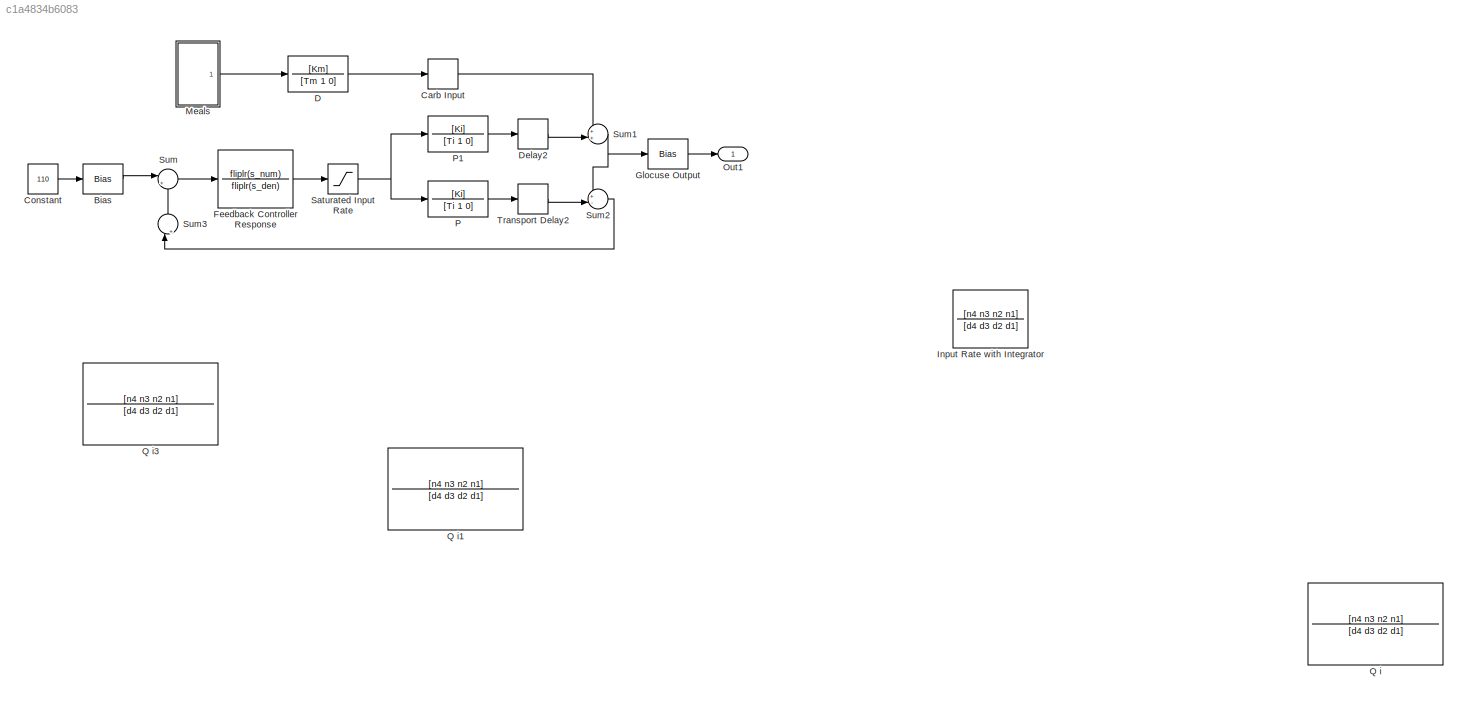
MODEL slx_c1a4834b6083
KIND model
CONFIG AbsTol = auto
CONFIG EnableMultiTasking = off
CONFIG FixedStep = auto
CONFIG MaxStep = auto
CONFIG MinStep = auto
CONFIG RelTol = 1e-3
CONFIG SampleTimeConstraint = Unconstrained
CONFIG Solver = VariableStepAuto
CONFIG SolverName = VariableStepAuto
CONFIG StartTime = 0.0
CONFIG StopTime = 48*60
BLOCK [Bias] Bias
  Bias = -110
  SaturateOnIntegerOverflow = off
BLOCK [TransportDelay] Carb Input
  DelayTime = Tdm
  Ports = [1, 1]
BLOCK [Constant] Constant
  Value = 110
BLOCK [TransferFcn] D
  Denominator = [Tm 1 0]
  Numerator = [Km]
BLOCK [TransportDelay] Delay2
  DelayTime = Tdi
  Ports = [1, 1]
BLOCK [TransferFcn] Feedback Controller Response
  Denominator = fliplr(s_den)
  Numerator = fliplr(s_num)
BLOCK [Bias] Glocuse Output
  Bias = +110
  SaturateOnIntegerOverflow = off
BLOCK [TransferFcn] Input Rate with Integrator
  Denominator = [d4 d3 d2 d1]
  Numerator = [n4 n3 n2 n1]
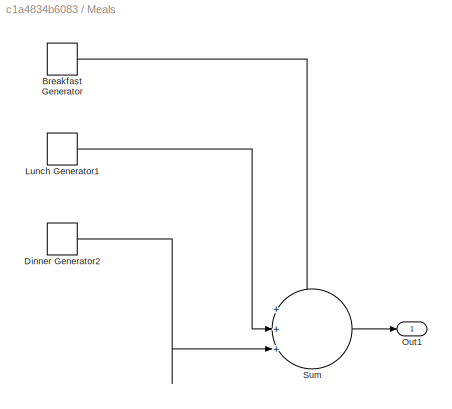
BLOCK [SubSystem] Meals
  Ports = [0, 1]
  RequestExecContextInheritance = off
  Variant = off
BLOCK [DiscretePulseGenerator] Meals/Breakfast Generator
  Amplitude = 25/10
  Period = 1440
  PhaseDelay = 60
  Ports = [0, 1]
  PulseWidth = 10
BLOCK [DiscretePulseGenerator] Meals/Dinner Generator2
  Amplitude = 3
  Period = 1440
  PhaseDelay = 540
  Ports = [0, 1]
  PulseWidth = 20
BLOCK [DiscretePulseGenerator] Meals/Lunch Generator1
  Amplitude = 40/15
  Period = 1440
  PhaseDelay = 420
  Ports = [0, 1]
  PulseWidth = 15
BLOCK [Outport] Meals/Out1
  IconDisplay = Port number
BLOCK [Sum] Meals/Sum
  IconShape = round
  InputSameDT = off
  Inputs = +++
  OutDataTypeStr = Inherit: Inherit via internal rule
  Ports = [3, 1]
  SaturateOnIntegerOverflow = off
BLOCK [Outport] Out1
  IconDisplay = Port number
BLOCK [TransferFcn] P
  Denominator = [Ti 1 0]
  Numerator = [Ki]
BLOCK [TransferFcn] P1
  Denominator = [Ti 1 0]
  Numerator = [Ki]
BLOCK [TransferFcn] Q i
  Denominator = [d4 d3 d2 d1]
  Numerator = [n4 n3 n2 n1]
BLOCK [TransferFcn] Q i1
  Denominator = [d4 d3 d2 d1]
  Numerator = [n4 n3 n2 n1]
BLOCK [TransferFcn] Q i3
  Denominator = [d4 d3 d2 d1]
  Numerator = [n4 n3 n2 n1]
BLOCK [Saturate] Saturated Input Rate
  InputPortMap = u0
  LowerLimit = 0
  Ports = [1, 1]
  UpperLimit = 166
BLOCK [Sum] Sum
  IconShape = round
  InputSameDT = off
  Inputs = |+-
  OutDataTypeStr = Inherit: Inherit via internal rule
  Ports = [2, 1]
  SaturateOnIntegerOverflow = off
BLOCK [Sum] Sum1
  IconShape = round
  InputSameDT = off
  Inputs = ++|
  OutDataTypeStr = Inherit: Inherit via internal rule
  Ports = [2, 1]
  SaturateOnIntegerOverflow = off
BLOCK [Sum] Sum2
  IconShape = round
  InputSameDT = off
  Inputs = +-|
  OutDataTypeStr = Inherit: Inherit via internal rule
  Ports = [2, 1]
  SaturateOnIntegerOverflow = off
BLOCK [Sum] Sum3
  IconShape = round
  InputSameDT = off
  Inputs = |++
  OutDataTypeStr = Inherit: Inherit via internal rule
  Ports = [2, 1]
  SaturateOnIntegerOverflow = off
BLOCK [TransportDelay] Transport Delay2
  DelayTime = Tdi
  Ports = [1, 1]
LINE Bias:1 -> Sum:1
LINE Carb Input:1 -> Sum1:1
LINE Constant:1 -> Bias:1
LINE D:1 -> Carb Input:1
LINE Delay2:1 -> Sum1:2
LINE Feedback Controller Response:1 -> Saturated Input Rate:1
LINE Glocuse Output:1 -> Out1:1
LINE Meals/Breakfast Generator:1 -> Meals/Sum:1
LINE Meals/Dinner Generator2:1 -> Meals/Sum:3
LINE Meals/Lunch Generator1:1 -> Meals/Sum:2
LINE Meals/Sum:1 -> Meals/Out1:1
LINE Meals:1 -> D:1
LINE P1:1 -> Delay2:1
LINE P:1 -> Transport Delay2:1
NET Saturated Input Rate:1 -> P1:1, P:1
NET Sum1:1 -> Glocuse Output:1, Sum2:1
LINE Sum2:1 -> Sum3:1
LINE Sum3:1 -> Sum:2
LINE Sum:1 -> Feedback Controller Response:1
LINE Transport Delay2:1 -> Sum2:2
note: NET lines group one-source signal fan-out (src -> all destinations, sorted); 1:1 wires keep LINE
